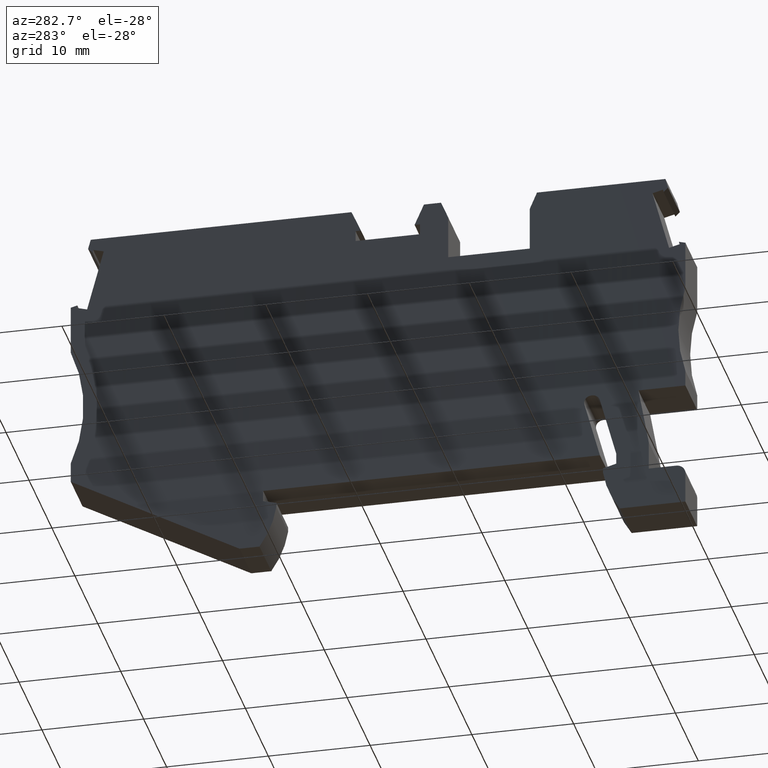
[diagram: clean part render]
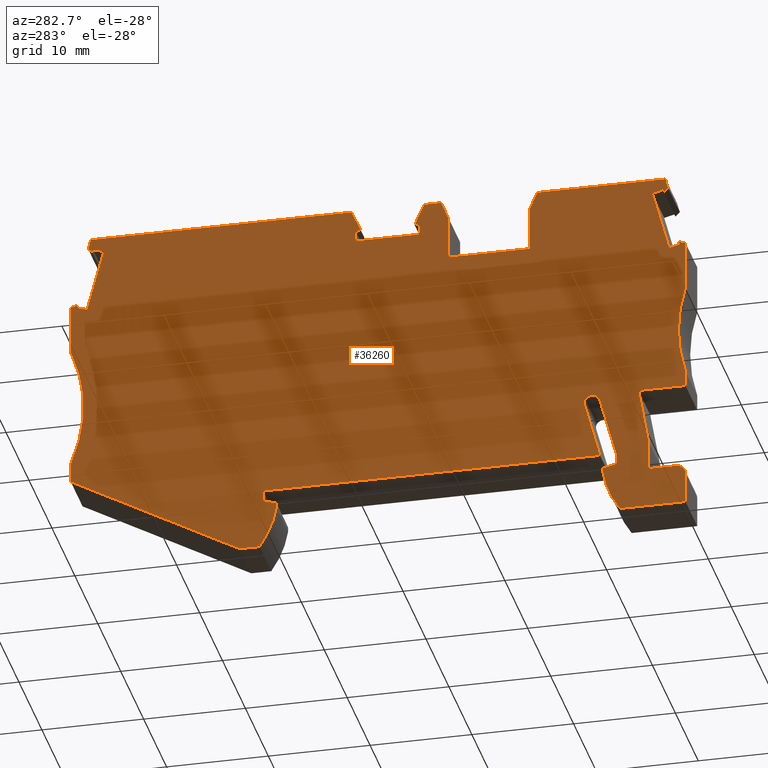
[diagram: same view with one face highlighted and labeled with its STEP entity id]
A machine part, auxiliary view. The second image highlights one B-rep face of the part: STEP entity #36260.
In plain terms, the highlighted planar face has unit normal (-1, 0, 0).
Its self-contained STEP definition (entity closure, byte-faithful):
#3860=CARTESIAN_POINT('',(-31.8869546500592,-18.8507203460335,48.52));
#3870=DIRECTION('',(-0.965925826290942,-0.25881904509553,0.));
#3880=VECTOR('',#3870,1.);
#3890=LINE('',#3860,#3880);
#3900=CARTESIAN_POINT('',(-21.7289289220527,-16.1288855555983,48.52));
#3910=VERTEX_POINT('',#3900);
#3920=CARTESIAN_POINT('',(-22.3678327783245,-16.3000793279225,48.52));
#3930=VERTEX_POINT('',#3920);
#3940=EDGE_CURVE('',#3910,#3930,#3890,.T.);
#5840=CARTESIAN_POINT('',(-14.2678327783245,-40.3000000000023,48.52));
#5850=VERTEX_POINT('',#5840);
#5900=CARTESIAN_POINT('',(-23.6618054577009,-38.8846282117039,48.52));
#5910=DIRECTION('',(0.,0.,1.));
#5920=DIRECTION('',(1.,0.,0.));
#5930=AXIS2_PLACEMENT_3D('',#5900,#5910,#5920);
#5940=CIRCLE('',#5930,9.499999999999);
#5950=CARTESIAN_POINT('',(-15.9267764314572,-44.4000000000014,48.52));
#5960=VERTEX_POINT('',#5950);
#5970=EDGE_CURVE('',#5960,#5850,#5940,.T.);
#7180=CARTESIAN_POINT('',(0.9321672216753,-15.1500000000016,48.52));
#7190=VERTEX_POINT('',#7180);
#7220=CARTESIAN_POINT('',(0.932167221675449,-42.5540372297518,48.52));
#7230=DIRECTION('',(-5.53723733531797E-15,1.,0.));
#7240=VECTOR('',#7230,1.);
#7250=LINE('',#7220,#7240);
#7260=CARTESIAN_POINT('',(0.932167221675272,-10.8500000000035,48.52));
#7270=VERTEX_POINT('',#7260);
#7280=EDGE_CURVE('',#7190,#7270,#7250,.T.);
#7550=CARTESIAN_POINT('',(-13.9678327783249,-38.4000000000014,48.52));
#7560=VERTEX_POINT('',#7550);
#7610=CARTESIAN_POINT('',(-14.5708539323056,-40.6505055846918,48.52));
#7620=DIRECTION('',(0.258819045102995,0.965925826288942,0.));
#7630=VECTOR('',#7620,1.);
#7640=LINE('',#7610,#7630);
#7650=CARTESIAN_POINT('',(-12.439544951387,-32.6963521812913,48.52));
#7660=VERTEX_POINT('',#7650);
#7670=EDGE_CURVE('',#7560,#7660,#7640,.T.);
#8040=CARTESIAN_POINT('',(10.0446672216771,-12.3250000000016,48.52));
#8050=VERTEX_POINT('',#8040);
#8200=CARTESIAN_POINT('',(3.71966722167659,-12.3250000000012,48.52));
#8210=VERTEX_POINT('',#8200);
#8240=CARTESIAN_POINT('',(-31.0856969427963,-12.3249999999992,48.52));
#8250=DIRECTION('',(-1.,5.79813974610488E-14,0.));
#8260=VECTOR('',#8250,1.);
#8270=LINE('',#8240,#8260);
#8280=EDGE_CURVE('',#8050,#8210,#8270,.T.);
#11850=CARTESIAN_POINT('',(17.8321672216754,-39.8483339501617,48.52));
#11860=VERTEX_POINT('',#11850);
#11890=CARTESIAN_POINT('',(-36.2442529339963,-54.3380670604362,48.52));
#11900=DIRECTION('',(0.965925826289086,0.258819045102457,0.));
#11910=VECTOR('',#11900,1.);
#11920=LINE('',#11890,#11910);
#11930=CARTESIAN_POINT('',(19.1321672216756,-39.5000000000013,48.52));
#11940=VERTEX_POINT('',#11930);
#11950=EDGE_CURVE('',#11860,#11940,#11920,.T.);
#12320=CARTESIAN_POINT('',(-20.2328552587309,-10.545462632217,48.52));
#12330=VERTEX_POINT('',#12320);
#12480=CARTESIAN_POINT('',(-20.1623768602548,-10.2824336682674,48.52));
#12490=VERTEX_POINT('',#12480);
#12520=CARTESIAN_POINT('',(-27.8621918696398,-39.0185344922441,48.52));
#12530=DIRECTION('',(0.258819045101928,0.965925826289227,0.));
#12540=VECTOR('',#12530,1.);
#12550=LINE('',#12520,#12540);
#12560=EDGE_CURVE('',#12330,#12490,#12550,.T.);
#15220=CARTESIAN_POINT('',(-30.6958559619301,-9.15000000000321,48.52));
#15230=DIRECTION('',(1.,0.,0.));
#15240=VECTOR('',#15230,1.);
#15250=LINE('',#15220,#15240);
#15260=CARTESIAN_POINT('',(10.4418215966526,-9.15000000000316,48.52));
#15270=VERTEX_POINT('',#15260);
#15280=CARTESIAN_POINT('',(36.0719729923297,-9.15000000000321,48.52));
#15290=VERTEX_POINT('',#15280);
#15300=EDGE_CURVE('',#15270,#15290,#15250,.T.);
#16600=CARTESIAN_POINT('',(-22.3678327783245,-39.6931569607141,48.52));
#16610=DIRECTION('',(-2.05391259555654E-15,1.,0.));
#16620=VECTOR('',#16610,1.);
#16630=LINE('',#16600,#16620);
#16640=CARTESIAN_POINT('',(-22.3678327783245,-31.8000000000004,48.52));
#16650=VERTEX_POINT('',#16640);
#16660=CARTESIAN_POINT('',(-22.3678327783245,-30.2000000000027,48.52));
#16670=VERTEX_POINT('',#16660);
#16680=EDGE_CURVE('',#16650,#16670,#16630,.T.);
#23250=CARTESIAN_POINT('',(21.4498082777127,-44.4000000000015,48.52));
#23260=VERTEX_POINT('',#23250);
#23310=CARTESIAN_POINT('',(-35.0240117337568,-44.3999999999983,48.52));
#23320=DIRECTION('',(-1.,5.79120085220097E-14,0.));
#23330=VECTOR('',#23320,1.);
#23340=LINE('',#23310,#23330);
#23350=CARTESIAN_POINT('',(19.4911108748078,-44.4000000000014,48.52));
#23360=VERTEX_POINT('',#23350);
#23370=EDGE_CURVE('',#23260,#23360,#23340,.T.);
#24070=CARTESIAN_POINT('',(19.1321672216756,-44.7887162381846,48.52));
#24080=DIRECTION('',(0.,1.,0.));
#24090=VECTOR('',#24080,1.);
#24100=LINE('',#24070,#24090);
#24110=CARTESIAN_POINT('',(19.1321672216756,-38.4000000000014,48.52));
#24120=VERTEX_POINT('',#24110);
#24130=EDGE_CURVE('',#11940,#24120,#24100,.T.);
#26020=CARTESIAN_POINT('',(3.71966722167659,-42.8962991932687,48.52));
#26030=DIRECTION('',(0.,1.,0.));
#26040=VECTOR('',#26030,1.);
#26050=LINE('',#26020,#26040);
#26060=CARTESIAN_POINT('',(3.71966722167659,-11.2550000000016,48.52));
#26070=VERTEX_POINT('',#26060);
#26080=EDGE_CURVE('',#8210,#26070,#26050,.T.);
#31810=CARTESIAN_POINT('',(36.3299328899744,-10.1127194443267,48.52));
#31820=VERTEX_POINT('',#31810);
#31850=CARTESIAN_POINT('',(3.56530628123637,-42.8773460529762,48.52));
#31860=DIRECTION('',(0.707106781187503,0.707106781185593,0.));
#31870=VECTOR('',#31860,1.);
#31880=LINE('',#31850,#31870);
#31890=CARTESIAN_POINT('',(35.8971897020823,-10.5454626322177,48.52));
#31900=VERTEX_POINT('',#31890);
#31910=EDGE_CURVE('',#31900,#31820,#31880,.T.);
#32140=CARTESIAN_POINT('',(-18.7678327783247,-40.1351813799645,48.52));
#32150=DIRECTION('',(0.,1.,0.));
#32160=VECTOR('',#32150,1.);
#32170=LINE('',#32140,#32160);
#32180=CARTESIAN_POINT('',(-18.7678327783247,-40.4000000000018,48.52));
#32190=VERTEX_POINT('',#32180);
#32200=CARTESIAN_POINT('',(-18.7678327783247,-37.5384100015805,48.52));
#32210=VERTEX_POINT('',#32200);
#32220=EDGE_CURVE('',#32190,#32210,#32170,.T.);
#32630=CARTESIAN_POINT('',(3.5299232216756,-12.7935680000014,48.52));
#32640=DIRECTION('',(-0.,-0.,-1.));
#32650=DIRECTION('',(0.,-1.,0.));
#32660=AXIS2_PLACEMENT_3D('',#32630,#32640,#32650);
#32670=PLANE('',#32660);
#32680=CARTESIAN_POINT('',(-33.4769262663803,-31.7999999999985,48.52));
#32690=DIRECTION('',(-1.,1.71668235182665E-13,0.));
#32700=VECTOR('',#32690,1.);
#32710=LINE('',#32680,#32700);
#32720=CARTESIAN_POINT('',(-17.755996268679,-31.8000000000011,48.52));
#32730=VERTEX_POINT('',#32720);
#32740=EDGE_CURVE('',#32730,#16650,#32710,.T.);
#32750=ORIENTED_EDGE('',*,*,#32740,.T.);
#32760=CARTESIAN_POINT('',(-19.2160104842472,-40.0801520771364,48.52));
#32770=DIRECTION('',(0.17364817766693,0.984807753012208,0.));
#32780=VECTOR('',#32770,1.);
#32790=LINE('',#32760,#32780);
#32800=EDGE_CURVE('',#32210,#32730,#32790,.T.);
#32810=ORIENTED_EDGE('',*,*,#32800,.T.);
#32820=ORIENTED_EDGE('',*,*,#32220,.T.);
#32830=CARTESIAN_POINT('',(-34.5328734901456,-40.4000000000018,48.52));
#32840=DIRECTION('',(1.,0.,0.));
#32850=VECTOR('',#32840,1.);
#32860=LINE('',#32830,#32850);
#32870=CARTESIAN_POINT('',(-21.4678327783241,-40.4000000000018,48.52));
#32880=VERTEX_POINT('',#32870);
#32890=EDGE_CURVE('',#32880,#32190,#32860,.T.);
#32900=ORIENTED_EDGE('',*,*,#32890,.T.);
#32910=CARTESIAN_POINT('',(-21.4678327783241,-41.3000000000016,48.52));
#32920=DIRECTION('',(0.,0.,1.));
#32930=DIRECTION('',(1.,0.,0.));
#32940=AXIS2_PLACEMENT_3D('',#32910,#32920,#32930);
#32950=CIRCLE('',#32940,0.899999999999826);
#32960=CARTESIAN_POINT('',(-22.3678327783247,-41.3000000000017,48.52));
#32970=VERTEX_POINT('',#32960);
#32980=EDGE_CURVE('',#32880,#32970,#32950,.T.);
#32990=ORIENTED_EDGE('',*,*,#32980,.F.);
#33000=CARTESIAN_POINT('',(-22.3678327783247,-39.6931569607141,48.52));
#33010=DIRECTION('',(0.,1.,0.));
#33020=VECTOR('',#33010,1.);
#33030=LINE('',#33000,#33020);
#33040=CARTESIAN_POINT('',(-22.3678327783247,-44.4000000000017,48.52));
#33050=VERTEX_POINT('',#33040);
#33060=EDGE_CURVE('',#33050,#32970,#33030,.T.);
#33070=ORIENTED_EDGE('',*,*,#33060,.T.);
#33080=CARTESIAN_POINT('',(-35.0240117337573,-44.4000000000022,48.52));
#33090=DIRECTION('',(-1.,-3.8219427622721E-14,0.));
#33100=VECTOR('',#33090,1.);
#33110=LINE('',#33080,#33100);
#33120=EDGE_CURVE('',#5960,#33050,#33110,.T.);
#33130=ORIENTED_EDGE('',*,*,#33120,.T.);
#33140=ORIENTED_EDGE('',*,*,#5970,.F.);
#33150=CARTESIAN_POINT('',(-14.2678327783248,-40.6877119040276,48.52));
#33160=DIRECTION('',(0.,-1.,0.));
#33170=VECTOR('',#33160,1.);
#33180=LINE('',#33150,#33170);
#33190=CARTESIAN_POINT('',(-14.2678327783246,-39.8483339501618,48.52));
#33200=VERTEX_POINT('',#33190);
#33210=EDGE_CURVE('',#33200,#5850,#33180,.T.);
#33220=ORIENTED_EDGE('',*,*,#33210,.T.);
#33230=CARTESIAN_POINT('',(-33.8218110628281,-34.6088612600111,48.52));
#33240=DIRECTION('',(0.96592582628904,-0.258819045102626,0.));
#33250=VECTOR('',#33240,1.);
#33260=LINE('',#33230,#33250);
#33270=CARTESIAN_POINT('',(-15.5678327783241,-39.5000000000014,48.52));
#33280=VERTEX_POINT('',#33270);
#33290=EDGE_CURVE('',#33280,#33200,#33260,.T.);
#33300=ORIENTED_EDGE('',*,*,#33290,.T.);
#33310=CARTESIAN_POINT('',(-15.5678327783241,-40.5280919748539,48.52));
#33320=DIRECTION('',(0.,-1.,0.));
#33330=VECTOR('',#33320,1.);
#33340=LINE('',#33310,#33330);
#33350=CARTESIAN_POINT('',(-15.5678327783241,-38.3999999999967,48.52));
#33360=VERTEX_POINT('',#33350);
#33370=EDGE_CURVE('',#33360,#33280,#33340,.T.);
#33380=ORIENTED_EDGE('',*,*,#33370,.T.);
#33390=CARTESIAN_POINT('',(-16.1198905892186,-40.4603077989502,48.52));
#33400=DIRECTION('',(0.258819045103168,0.965925826288895,0.));
#33410=VECTOR('',#33400,1.);
#33420=LINE('',#33390,#33410);
#33430=CARTESIAN_POINT('',(-13.9582471789267,-32.3929447639189,48.52));
#33440=VERTEX_POINT('',#33430);
#33450=EDGE_CURVE('',#33360,#33440,#33420,.T.);
#33460=ORIENTED_EDGE('',*,*,#33450,.F.);
#33470=CARTESIAN_POINT('',(-13.1855065178956,-32.6000000000015,48.52));
#33480=DIRECTION('',(0.,0.,1.));
#33490=DIRECTION('',(1.,0.,0.));
#33500=AXIS2_PLACEMENT_3D('',#33470,#33480,#33490);
#33510=CIRCLE('',#33500,0.799999999999994);
#33520=CARTESIAN_POINT('',(-12.9558416625104,-31.8336749683074,48.52));
#33530=VERTEX_POINT('',#33520);
#33540=EDGE_CURVE('',#33530,#33440,#33510,.T.);
#33550=ORIENTED_EDGE('',*,*,#33540,.T.);
#33560=CARTESIAN_POINT('',(-13.1156930297916,-32.5151788497187,48.52));
#33570=DIRECTION('',(0.,0.,1.));
#33580=DIRECTION('',(1.,0.,0.));
#33590=AXIS2_PLACEMENT_3D('',#33560,#33570,#33580);
#33600=CIRCLE('',#33590,0.700000000000186);
#33610=EDGE_CURVE('',#7660,#33530,#33600,.T.);
#33620=ORIENTED_EDGE('',*,*,#33610,.T.);
#33630=ORIENTED_EDGE('',*,*,#7670,.T.);
#33640=CARTESIAN_POINT('',(-34.2873043683398,-38.4000000000014,48.52));
#33650=DIRECTION('',(-1.,0.,0.));
#33660=VECTOR('',#33650,1.);
#33670=LINE('',#33640,#33660);
#33680=EDGE_CURVE('',#24120,#7560,#33670,.T.);
#33690=ORIENTED_EDGE('',*,*,#33680,.T.);
#33700=ORIENTED_EDGE('',*,*,#24130,.T.);
#33710=ORIENTED_EDGE('',*,*,#11950,.T.);
#33720=CARTESIAN_POINT('',(17.8321672216721,-44.6290963090104,48.52));
#33730=DIRECTION('',(6.9022565440946E-13,1.,0.));
#33740=VECTOR('',#33730,1.);
#33750=LINE('',#33720,#33740);
#33760=CARTESIAN_POINT('',(17.8321672216751,-40.300000000002,48.52));
#33770=VERTEX_POINT('',#33760);
#33780=EDGE_CURVE('',#33770,#11860,#33750,.T.);
#33790=ORIENTED_EDGE('',*,*,#33780,.T.);
#33800=CARTESIAN_POINT('',(27.2261399010515,-38.8846282117038,48.52));
#33810=DIRECTION('',(0.,0.,-1.));
#33820=DIRECTION('',(-1.,0.,0.));
#33830=AXIS2_PLACEMENT_3D('',#33800,#33810,#33820);
#33840=CIRCLE('',#33830,9.499999999999);
#33850=EDGE_CURVE('',#23360,#33770,#33840,.T.);
#33860=ORIENTED_EDGE('',*,*,#33850,.T.);
#33870=ORIENTED_EDGE('',*,*,#23370,.T.);
#33880=CARTESIAN_POINT('',(-39.1523305504364,-78.0224586081626,48.52));
#33890=DIRECTION('',(-0.874435210897321,-0.485142311021166,0.));
#33900=VECTOR('',#33890,1.);
#33910=LINE('',#33880,#33900);
#33920=CARTESIAN_POINT('',(38.0321672216756,-35.2,48.52));
#33930=VERTEX_POINT('',#33920);
#33940=EDGE_CURVE('',#33930,#23260,#33910,.T.);
#33950=ORIENTED_EDGE('',*,*,#33940,.T.);
#33960=CARTESIAN_POINT('',(38.0321672216756,-47.1093444392495,48.52));
#33970=DIRECTION('',(-8.32667268468867E-17,-1.,0.));
#33980=VECTOR('',#33970,1.);
#33990=LINE('',#33960,#33980);
#34000=CARTESIAN_POINT('',(38.0321672216756,-33.2000000000027,48.52));
#34010=VERTEX_POINT('',#34000);
#34020=EDGE_CURVE('',#34010,#33930,#33990,.T.);
#34030=ORIENTED_EDGE('',*,*,#34020,.T.);
#34040=CARTESIAN_POINT('',(51.7798943065431,-27.2000000000027,48.52));
#34050=DIRECTION('',(0.,0.,1.));
#34060=DIRECTION('',(1.,0.,0.));
#34070=AXIS2_PLACEMENT_3D('',#34040,#34050,#34060);
#34080=CIRCLE('',#34070,15.);
#34090=CARTESIAN_POINT('',(38.0321672216757,-21.2000000000024,48.52));
#34100=VERTEX_POINT('',#34090);
#34110=EDGE_CURVE('',#34100,#34010,#34080,.T.);
#34120=ORIENTED_EDGE('',*,*,#34110,.T.);
#34130=CARTESIAN_POINT('',(38.0321672216757,-47.1093444392495,48.52));
#34140=DIRECTION('',(-5.55111512312578E-17,-1.,0.));
#34150=VECTOR('',#34140,1.);
#34160=LINE('',#34130,#34150);
#34170=CARTESIAN_POINT('',(38.0321672216757,-16.3000793279237,48.52));
#34180=VERTEX_POINT('',#34170);
#34190=EDGE_CURVE('',#34180,#34100,#34160,.T.);
#34200=ORIENTED_EDGE('',*,*,#34190,.T.);
#34210=CARTESIAN_POINT('',(-29.3566806060777,1.75670802586475,48.52));
#34220=DIRECTION('',(-0.965925826290939,0.25881904509554,0.));
#34230=VECTOR('',#34220,1.);
#34240=LINE('',#34210,#34230);
#34250=CARTESIAN_POINT('',(37.3932633654039,-16.1288855555997,48.52));
#34260=VERTEX_POINT('',#34250);
#34270=EDGE_CURVE('',#34180,#34260,#34240,.T.);
#34280=ORIENTED_EDGE('',*,*,#34270,.F.);
#34290=CARTESIAN_POINT('',(45.9551175602486,-48.0821604176267,48.52));
#34300=DIRECTION('',(0.258819045103503,-0.965925826288805,0.));
#34310=VECTOR('',#34300,1.);
#34320=LINE('',#34290,#34310);
#34330=CARTESIAN_POINT('',(37.4637417638794,-16.3919145195451,48.52));
#34340=VERTEX_POINT('',#34330);
#34350=EDGE_CURVE('',#34260,#34340,#34320,.T.);
#34360=ORIENTED_EDGE('',*,*,#34350,.F.);
#34370=CARTESIAN_POINT('',(-33.9340399848925,-35.5228924805422,48.52));
#34380=DIRECTION('',(-0.965925826288933,-0.258819045103026,0.));
#34390=VECTOR('',#34380,1.);
#34400=LINE('',#34370,#34390);
#34410=CARTESIAN_POINT('',(36.4302011297503,-16.6688508978053,48.52));
#34420=VERTEX_POINT('',#34410);
#34430=EDGE_CURVE('',#34340,#34420,#34400,.T.);
#34440=ORIENTED_EDGE('',*,*,#34430,.F.);
#34450=CARTESIAN_POINT('',(44.8096873663856,-47.9415192742283,48.52));
#34460=DIRECTION('',(-0.258819045102705,0.965925826289019,0.));
#34470=VECTOR('',#34460,1.);
#34480=LINE('',#34450,#34470);
#34490=CARTESIAN_POINT('',(34.7931706694764,-10.5593700465281,48.52));
#34500=VERTEX_POINT('',#34490);
#34510=EDGE_CURVE('',#34420,#34500,#34480,.T.);
#34520=ORIENTED_EDGE('',*,*,#34510,.F.);
#34530=CARTESIAN_POINT('',(-33.1026799550058,-28.7520083907735,48.52));
#34540=DIRECTION('',(0.9659258262891,0.258819045102404,0.));
#34550=VECTOR('',#34540,1.);
#34560=LINE('',#34530,#34550);
#34570=CARTESIAN_POINT('',(35.8267113036066,-10.2824336682683,48.52));
#34580=VERTEX_POINT('',#34570);
#34590=EDGE_CURVE('',#34500,#34580,#34560,.T.);
#34600=ORIENTED_EDGE('',*,*,#34590,.F.);
#34610=CARTESIAN_POINT('',(45.955117560187,-48.0821604176192,48.52));
#34620=DIRECTION('',(0.258819045101928,-0.965925826289227,0.));
#34630=VECTOR('',#34620,1.);
#34640=LINE('',#34610,#34630);
#34650=EDGE_CURVE('',#34580,#31900,#34640,.T.);
#34660=ORIENTED_EDGE('',*,*,#34650,.F.);
#34670=ORIENTED_EDGE('',*,*,#31910,.F.);
#34680=CARTESIAN_POINT('',(46.5224801796062,-48.1518237877173,48.52));
#34690=DIRECTION('',(0.258819045102926,-0.96592582628896,0.));
#34700=VECTOR('',#34690,1.);
#34710=LINE('',#34680,#34700);
#34720=EDGE_CURVE('',#15290,#31820,#34710,.T.);
#34730=ORIENTED_EDGE('',*,*,#34720,.T.);
#34740=ORIENTED_EDGE('',*,*,#15300,.T.);
#34750=CARTESIAN_POINT('',(-3.97307229660357,-41.9517495493763,48.52));
#34760=DIRECTION('',(0.402320578212711,0.915498854366618,0.));
#34770=VECTOR('',#34760,1.);
#34780=LINE('',#34750,#34770);
#34790=CARTESIAN_POINT('',(9.51676875458972,-11.2550000000016,48.52));
#34800=VERTEX_POINT('',#34790);
#34810=EDGE_CURVE('',#34800,#15270,#34780,.T.);
#34820=ORIENTED_EDGE('',*,*,#34810,.T.);
#34830=CARTESIAN_POINT('',(-30.9543174626305,-11.2550000000016,48.52));
#34840=DIRECTION('',(1.,0.,0.));
#34850=VECTOR('',#34840,1.);
#34860=LINE('',#34830,#34850);
#34870=CARTESIAN_POINT('',(10.0446672216767,-11.2550000000016,48.52));
#34880=VERTEX_POINT('',#34870);
#34890=EDGE_CURVE('',#34800,#34880,#34860,.T.);
#34900=ORIENTED_EDGE('',*,*,#34890,.F.);
#34910=CARTESIAN_POINT('',(10.0446672216767,-43.6729115409796,48.52));
#34920=DIRECTION('',(0.,-1.,0.));
#34930=VECTOR('',#34920,1.);
#34940=LINE('',#34910,#34930);
#34950=EDGE_CURVE('',#34880,#8050,#34940,.T.);
#34960=ORIENTED_EDGE('',*,*,#34950,.F.);
#34970=ORIENTED_EDGE('',*,*,#8280,.F.);
#34980=ORIENTED_EDGE('',*,*,#26080,.F.);
#34990=CARTESIAN_POINT('',(-30.9543174626305,-11.2550000000016,48.52));
#35000=DIRECTION('',(1.,0.,0.));
#35010=VECTOR('',#35000,1.);
#35020=LINE('',#34990,#35010);
#35030=CARTESIAN_POINT('',(4.24756568876223,-11.2550000000016,48.52));
#35040=VERTEX_POINT('',#35030);
#35050=EDGE_CURVE('',#26070,#35040,#35020,.T.);
#35060=ORIENTED_EDGE('',*,*,#35050,.F.);
#35070=CARTESIAN_POINT('',(18.9756823710978,-44.7695023145185,48.52));
#35080=DIRECTION('',(0.402320578211921,-0.915498854366965,0.));
#35090=VECTOR('',#35080,1.);
#35100=LINE('',#35070,#35090);
#35110=CARTESIAN_POINT('',(3.32251284670154,-9.15000000000322,48.52));
#35120=VERTEX_POINT('',#35110);
#35130=EDGE_CURVE('',#35120,#35040,#35100,.T.);
#35140=ORIENTED_EDGE('',*,*,#35130,.T.);
#35150=CARTESIAN_POINT('',(-30.6958559619306,-9.15000000000734,48.52));
#35160=DIRECTION('',(-1.,-1.21042065259758E-13,0.));
#35170=VECTOR('',#35160,1.);
#35180=LINE('',#35150,#35170);
#35190=CARTESIAN_POINT('',(1.65066694095677,-9.15000000000342,48.52));
#35200=VERTEX_POINT('',#35190);
#35210=EDGE_CURVE('',#35120,#35200,#35180,.T.);
#35220=ORIENTED_EDGE('',*,*,#35210,.F.);
#35230=CARTESIAN_POINT('',(-11.8063846804767,-40.9899397279071,48.52));
#35240=DIRECTION('',(-0.389303997086923,-0.921109330021222,0.));
#35250=VECTOR('',#35240,1.);
#35260=LINE('',#35230,#35250);
#35270=EDGE_CURVE('',#35200,#7270,#35260,.T.);
#35280=ORIENTED_EDGE('',*,*,#35270,.F.);
#35290=ORIENTED_EDGE('',*,*,#7280,.T.);
#35300=CARTESIAN_POINT('',(-31.4325633273473,-15.1500000000016,48.52));
#35310=DIRECTION('',(-1.,0.,0.));
#35320=VECTOR('',#35310,1.);
#35330=LINE('',#35300,#35320);
#35340=CARTESIAN_POINT('',(-7.06783277832441,-15.1500000000016,48.52));
#35350=VERTEX_POINT('',#35340);
#35360=EDGE_CURVE('',#7190,#35350,#35330,.T.);
#35370=ORIENTED_EDGE('',*,*,#35360,.F.);
#35380=CARTESIAN_POINT('',(-7.06783277832433,-41.5717607425285,48.52));
#35390=DIRECTION('',(2.76167977375508E-15,-1.,0.));
#35400=VECTOR('',#35390,1.);
#35410=LINE('',#35380,#35400);
#35420=CARTESIAN_POINT('',(-7.06783277832442,-10.8500000000034,48.52));
#35430=VERTEX_POINT('',#35420);
#35440=EDGE_CURVE('',#35430,#35350,#35410,.T.);
#35450=ORIENTED_EDGE('',*,*,#35440,.T.);
#35460=CARTESIAN_POINT('',(6.62732765293212,-43.2533150025752,48.52));
#35470=DIRECTION('',(-0.389303997086923,0.921109330021222,0.));
#35480=VECTOR('',#35470,1.);
#35490=LINE('',#35460,#35480);
#35500=CARTESIAN_POINT('',(-7.78633249760594,-9.15000000000321,48.52));
#35510=VERTEX_POINT('',#35500);
#35520=EDGE_CURVE('',#35430,#35510,#35490,.T.);
#35530=ORIENTED_EDGE('',*,*,#35520,.F.);
#35540=CARTESIAN_POINT('',(-30.6958559619297,-9.15000000000042,48.52));
#35550=DIRECTION('',(-1.,1.26121335597418E-13,0.));
#35560=VECTOR('',#35550,1.);
#35570=LINE('',#35540,#35560);
#35580=CARTESIAN_POINT('',(-20.4076385489783,-9.15000000000173,48.52));
#35590=VERTEX_POINT('',#35580);
#35600=EDGE_CURVE('',#35510,#35590,#35570,.T.);
#35610=ORIENTED_EDGE('',*,*,#35600,.F.);
#35620=CARTESIAN_POINT('',(-28.3934111192612,-38.9533089699361,48.52));
#35630=DIRECTION('',(-0.258819045102936,-0.965925826288957,0.));
#35640=VECTOR('',#35630,1.);
#35650=LINE('',#35620,#35640);
#35660=CARTESIAN_POINT('',(-20.6655984466231,-10.1127194443259,48.52));
#35670=VERTEX_POINT('',#35660);
#35680=EDGE_CURVE('',#35590,#35670,#35650,.T.);
#35690=ORIENTED_EDGE('',*,*,#35680,.F.);
#35700=CARTESIAN_POINT('',(-29.7042555077718,-1.07406238320153,48.52));
#35710=DIRECTION('',(-0.707106781187495,0.7071067811856,0.));
#35720=VECTOR('',#35710,1.);
#35730=LINE('',#35700,#35720);
#35740=EDGE_CURVE('',#12330,#35670,#35730,.T.);
#35750=ORIENTED_EDGE('',*,*,#35740,.T.);
#35760=ORIENTED_EDGE('',*,*,#12560,.F.);
#35770=CARTESIAN_POINT('',(-30.4949591286781,-7.51382659371658,48.52));
#35780=DIRECTION('',(0.9659258262891,-0.258819045102404,0.));
#35790=VECTOR('',#35780,1.);
#35800=LINE('',#35770,#35790);
#35810=CARTESIAN_POINT('',(-19.1288362261254,-10.559370046527,48.52));
#35820=VERTEX_POINT('',#35810);
#35830=EDGE_CURVE('',#12490,#35820,#35800,.T.);
#35840=ORIENTED_EDGE('',*,*,#35830,.F.);
#35850=CARTESIAN_POINT('',(-26.7897303657746,-39.1502162070814,48.52));
#35860=DIRECTION('',(0.258819045102715,0.965925826289016,0.));
#35870=VECTOR('',#35860,1.);
#35880=LINE('',#35850,#35870);
#35890=CARTESIAN_POINT('',(-20.7658666864001,-16.6688508978052,48.52));
#35900=VERTEX_POINT('',#35890);
#35910=EDGE_CURVE('',#35900,#35820,#35880,.T.);
#35920=ORIENTED_EDGE('',*,*,#35910,.T.);
#35930=CARTESIAN_POINT('',(-31.2733580505142,-13.8533770723114,48.52));
#35940=DIRECTION('',(-0.96592582628901,0.25881904510274,0.));
#35950=VECTOR('',#35940,1.);
#35960=LINE('',#35930,#35950);
#35970=CARTESIAN_POINT('',(-21.7994073205286,-16.3919145195456,48.52));
#35980=VERTEX_POINT('',#35970);
#35990=EDGE_CURVE('',#35900,#35980,#35960,.T.);
#36000=ORIENTED_EDGE('',*,*,#35990,.F.);
#36010=CARTESIAN_POINT('',(-27.8621918696753,-39.0185344922397,48.52));
#36020=DIRECTION('',(0.258819045103216,0.965925826288882,0.));
#36030=VECTOR('',#36020,1.);
#36040=LINE('',#36010,#36030);
#36050=EDGE_CURVE('',#35980,#3910,#36040,.T.);
#36060=ORIENTED_EDGE('',*,*,#36050,.F.);
#36070=ORIENTED_EDGE('',*,*,#3940,.F.);
#36080=CARTESIAN_POINT('',(-22.3678327783245,-39.6931569607141,48.52));
#36090=DIRECTION('',(-2.05391259555654E-15,1.,0.));
#36100=VECTOR('',#36090,1.);
#36110=LINE('',#36080,#36100);
#36120=CARTESIAN_POINT('',(-22.3678327783245,-21.2000000000028,48.52));
#36130=VERTEX_POINT('',#36120);
#36140=EDGE_CURVE('',#36130,#3930,#36110,.T.);
#36150=ORIENTED_EDGE('',*,*,#36140,.T.);
#36160=CARTESIAN_POINT('',(-36.6769207995787,-25.7000000000028,48.52));
#36170=DIRECTION('',(0.,0.,1.));
#36180=DIRECTION('',(1.,0.,0.));
#36190=AXIS2_PLACEMENT_3D('',#36160,#36170,#36180);
#36200=CIRCLE('',#36190,15.);
#36210=EDGE_CURVE('',#16670,#36130,#36200,.T.);
#36220=ORIENTED_EDGE('',*,*,#36210,.T.);
#36230=ORIENTED_EDGE('',*,*,#16680,.T.);
#36240=EDGE_LOOP('',(#36230,#36220,#36150,#36070,#36060,#36000,#35920,
#35840,#35760,#35750,#35690,#35610,#35530,#35450,#35370,#35290,#35280,
#35220,#35140,#35060,#34980,#34970,#34960,#34900,#34820,#34740,#34730,
#34670,#34660,#34600,#34520,#34440,#34360,#34280,#34200,#34120,#34030,
#33950,#33870,#33860,#33790,#33710,#33700,#33690,#33630,#33620,#33550,
#33460,#33380,#33300,#33220,#33140,#33130,#33070,#32990,#32900,#32820,
#32810,#32750));
#36250=FACE_OUTER_BOUND('',#36240,.T.);
#36260=ADVANCED_FACE('',(#36250),#32670,.T.);